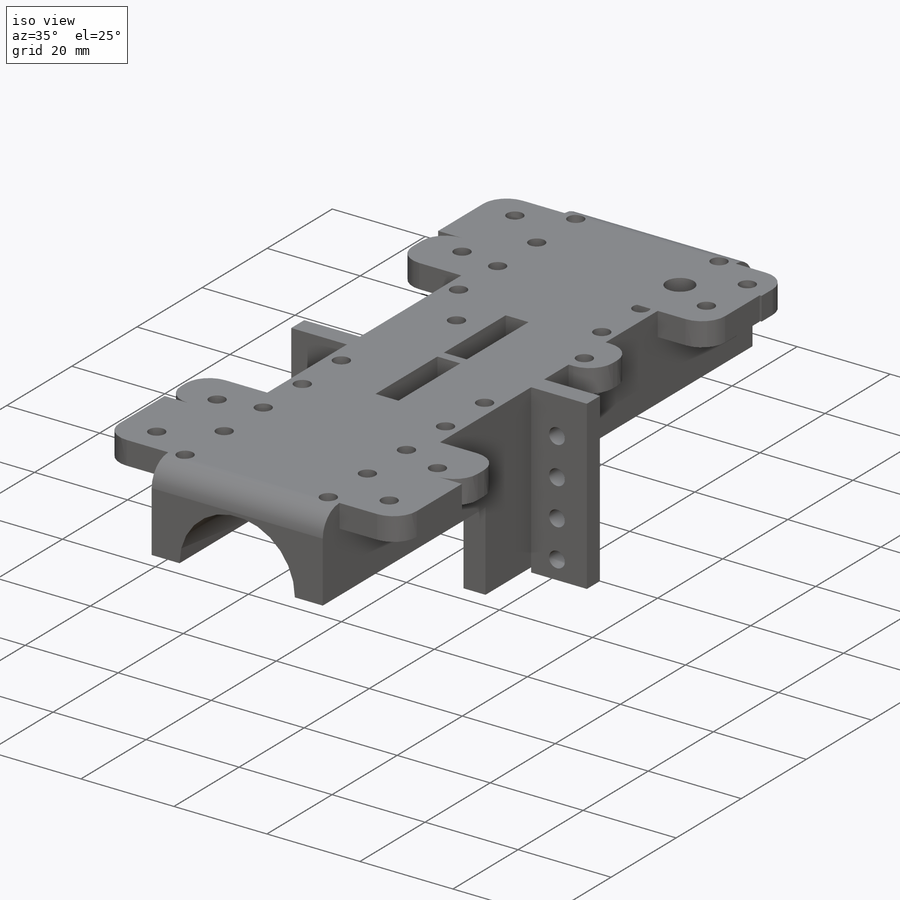
[diagram: iso view]
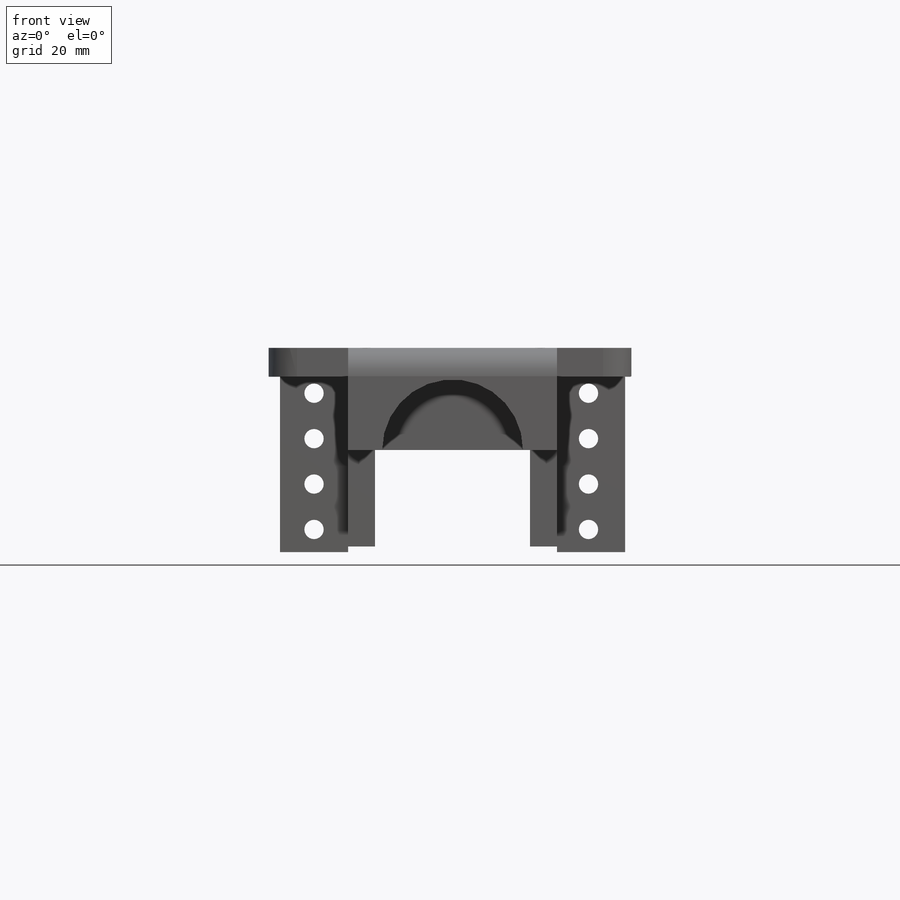
[diagram: front view]
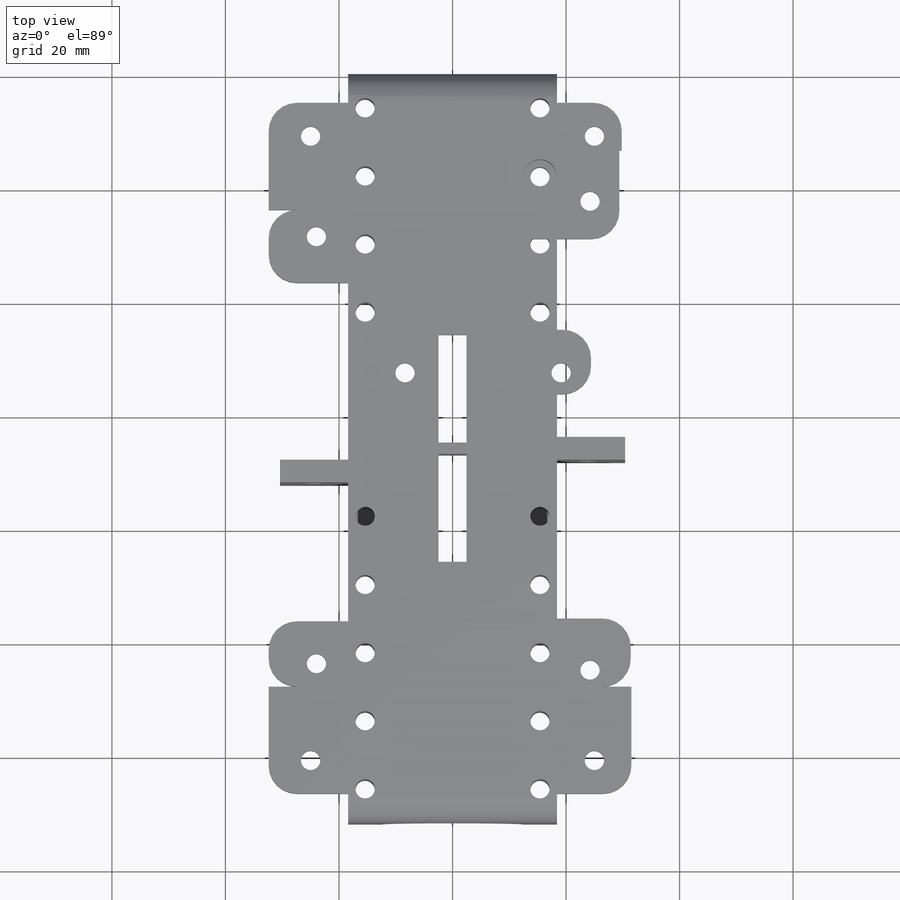
[diagram: top view]
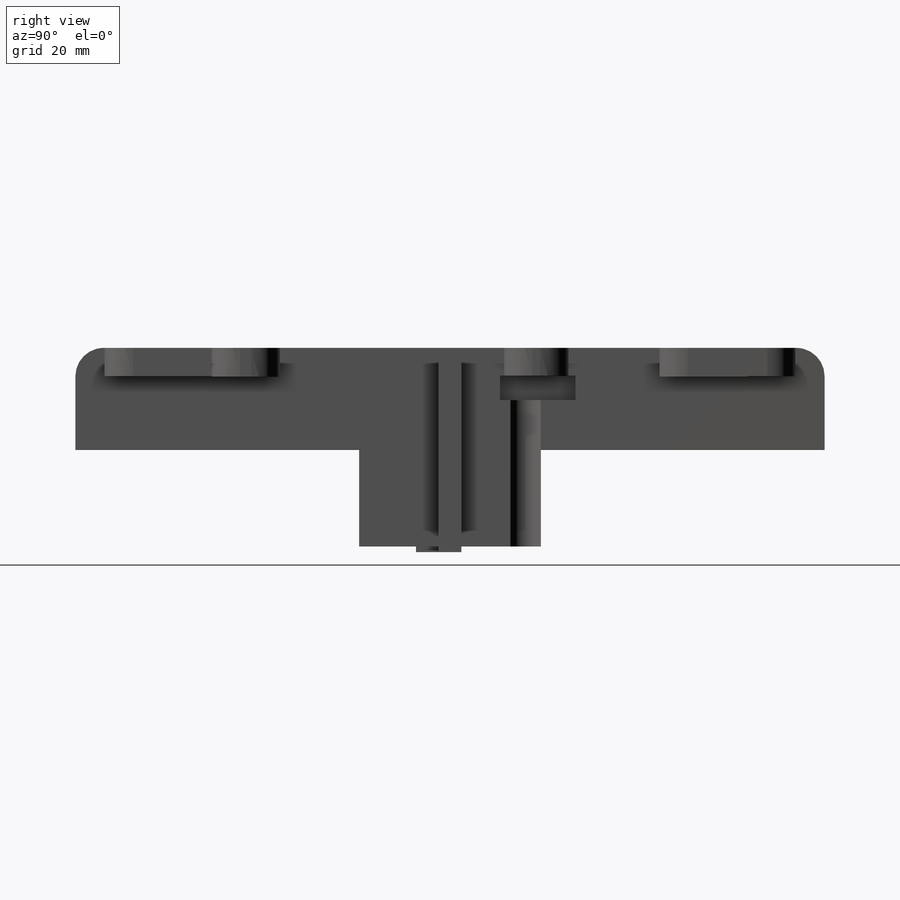
[diagram: right view]
SOLIDWORKS PART (.sldprt)
format: sldprt  version: not decoded by parser v0  size: 883,712 bytes
history: native  units: mm
features: sketch x28, cut_extrude x14, extrude x10, plane x3, fillet x3, material x1 (+10 scaffold rows collapsed)
feature tree (69):
  scaffold x10  (default folders/planes/origin — collapsed)
  material  "Matériau <non spécifié>"
  plane  "Plan de face"
  plane  "Plan de dessus"
  plane  "Plan de droite"
  sketch  "Esquisse1"  dims[c1.D1=~22.590134mm c1.D2=~12.560062mm c1.D3=~12.560062mm c2.D1=6.0mm c2.D2=18.0mm c2.D3=16.0mm]
  extrude  "Boss.-Extru.1"  Depth=132mm
  sketch  "Esquisse3"  dims[D1=40.0mm]
  cut_extrude  "Enlèv. mat.-Extru.2"  Depth=9mm
  sketch  "Esquisse4"  dims[D5=1.3mm D1=3.0mm D2=6.0mm D3=6.0mm D4=5.0]
  cut_extrude  "Enlèv. mat.-Extru.3"  Depth=18mm
  sketch  "Esquisse5"  dims[D1=24.0mm D2=6.0mm]
  sketch  "Esquisse7"  dims[D1=2.0mm]
  extrude  "Boss.-Extru.2"  [1 undecoded]
  sketch  "Esquisse8"  dims[D1=~13.384846mm]
  cut_extrude  "Enlèv. mat.-Extru.5"  Depth=15mm
  sketch  "Esquisse9"  dims[D1=~13.27579mm]
  cut_extrude  "Enlèv. mat.-Extru.6"  Depth=15mm
  sketch  "Esquisse10"
  extrude  "Boss.-Extru.3"  Depth=17mm
  sketch  "Esquisse21"  dims[D1=5.1mm]
  extrude  "Boss.-Extru.7"  Depth=14mm
  sketch  "Esquisse12"  dims[D1=8.0mm D2=12.0mm D3=8.0mm D4=12.0mm]
  extrude  "Boss.-Extru.4"  Depth=13mm
  sketch  "Esquisse14"
  extrude  "Boss.-Extru.5"  Depth=6mm
  sketch  "Esquisse16"
  cut_extrude  "Enlèv. mat.-Extru.7"  Depth=11mm
  sketch  "Esquisse17"
  extrude  "Boss.-Extru.6"  Depth=11mm
  sketch  "Esquisse11"  dims[c1.D8=~1.523201mm c1.D9=~2.130306mm c1.D10=~1.121657mm c1.D11=~2.638479mm c1.D13=1.58mm c1.D14=1.85mm c1.D1=50.0mm c1.D2=50.0mm c1.D3=26.63mm c1.D4=26.63mm c1.D5=2.41mm c1.D6=14.0mm c1.D7=7.5mm c2.D8=64.0mm c2.D9=5.78mm c2.D10=35.0mm c2.D11=~20.304376mm c2.D12=~20.304376mm c3.D11=2.65mm c3.D12=12.76mm c3.D13=12.0mm c3.D14=75.24mm c4.D14=~56.388371deg]
  cut_extrude  "Enlèv. mat.-Extru.8"  Depth=8mm
  fillet  "Congé1"  Radius=5mm
  sketch  "Esquisse18"
  cut_extrude  "Enlèv. mat.-Extru.9"  Depth=10mm
  fillet  "Congé2"  Radius=5mm
  sketch  "Esquisse19"
  cut_extrude  "Enlèv. mat.-Extru.10"  Depth=24mm
  sketch  "Esquisse20"  dims[D1=27.3mm]
  cut_extrude  "Enlèv. mat.-Extru.11"  Depth=22mm
  sketch  "Esquisse22"
  cut_extrude  "Enlèv. mat.-Extru.12"  Depth=33mm
  sketch  "Esquisse23"
  cut_extrude  "Enlèv. mat.-Extru.13"  Depth=23mm
  sketch  "Esquisse29"  dims[D1=4.0mm]
  extrude  "Boss.-Extru.8"  Depth=12mm
  sketch  "Esquisse30"  dims[D1=4.0mm D2=4.0mm]
  extrude  "Boss.-Extru.9"  Depth=12mm
  sketch  "Esquisse31"  dims[D1=8.0mm D2=0.0deg]
  cut_extrude  "Enlèv. mat.-Extru.18"  Depth=12mm
  sketch  "Esquisse32"  dims[D1=8.0mm D2=0.0deg]
  cut_extrude  "Enlèv. mat.-Extru.19"  Depth=12mm
  sketch  "Esquisse34"
  extrude  "Boss.-Extru.10"  Depth=5mm
  sketch  "Esquisse33"  dims[c1.D2=3.0mm c1.D1=55.0mm c2.D2=25.0mm]
  cut_extrude  "Enlèv. mat.-Extru.20"  Depth=15mm
  fillet  "Congé3"  Radius=5mm
  sketch  "Esquisse35"
  sketch  "Esquisse36"
  sketch  "Esquisse37"
decode coverage: 42 of 55 modeling features carry decoded parameters
note: ~ marks probable driven/reference dimensions
note: 1 parameter value undecoded
note: suppression state not decoded; provenance and decode notes live in map.json
